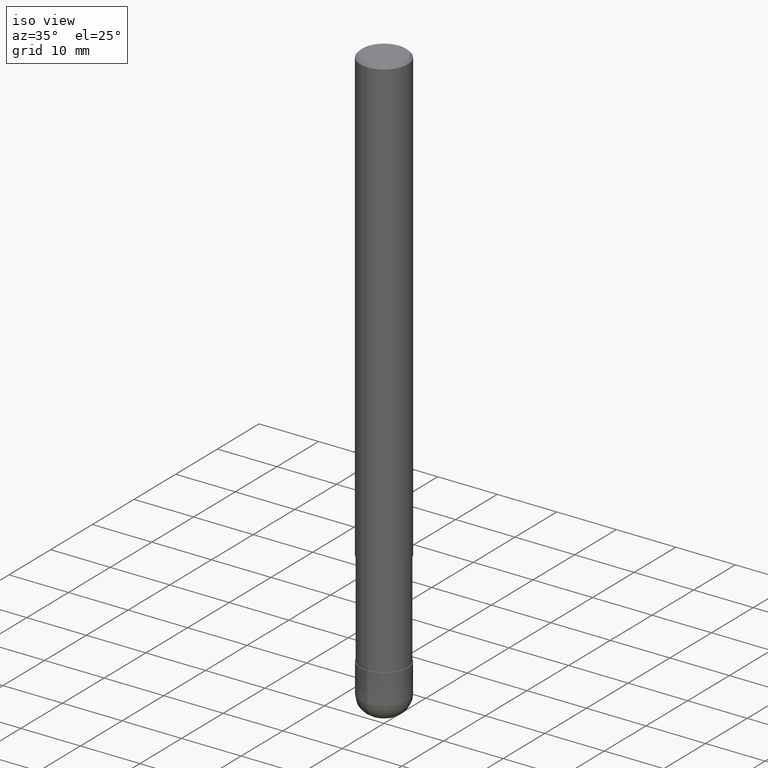
[diagram: clean part render]
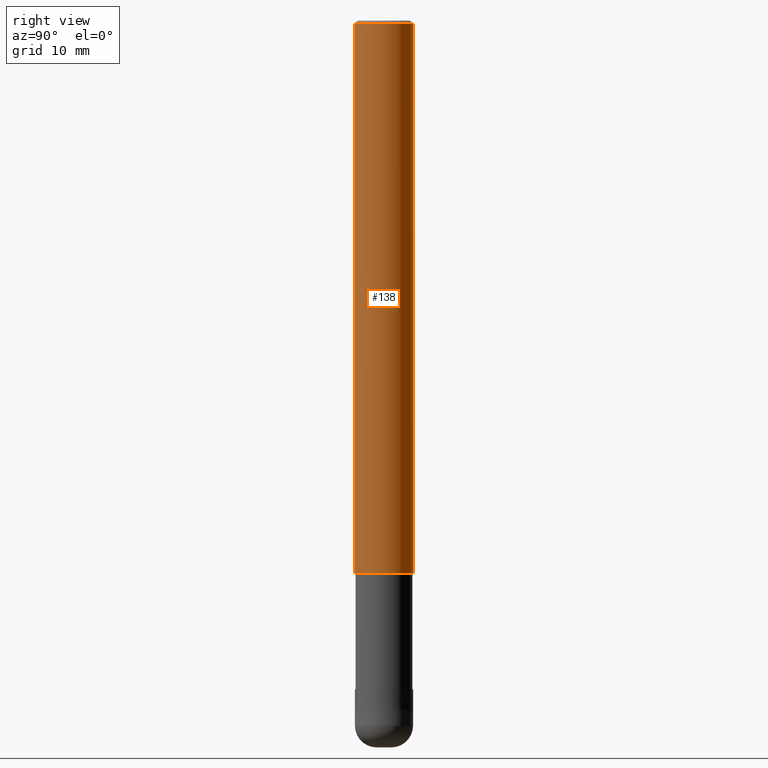
[diagram: tour spotlight — one face highlighted and labeled with its STEP entity id]
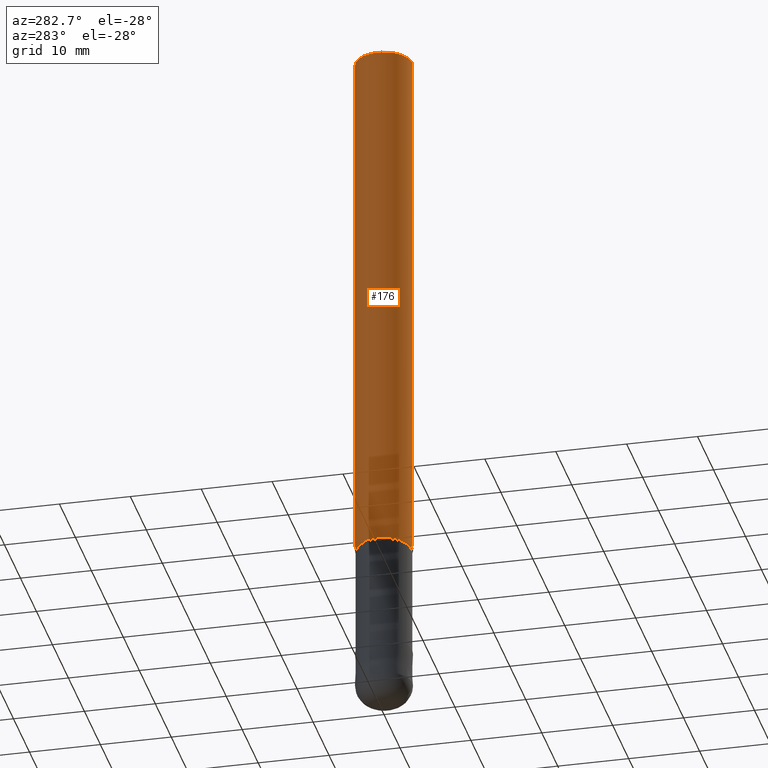
[diagram: tour spotlight — one face highlighted and labeled with its STEP entity id]
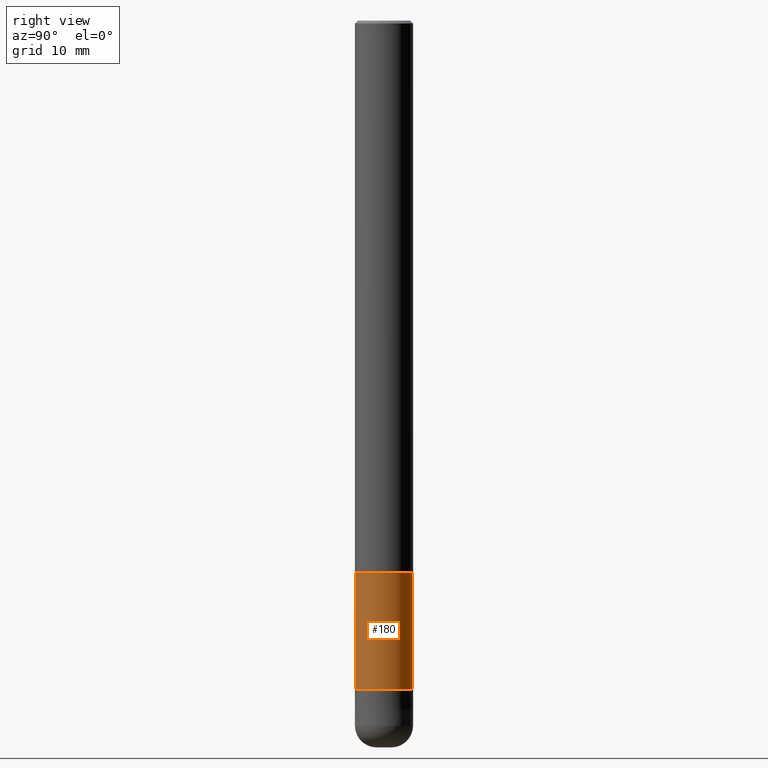
[diagram: tour spotlight — one face highlighted and labeled with its STEP entity id]
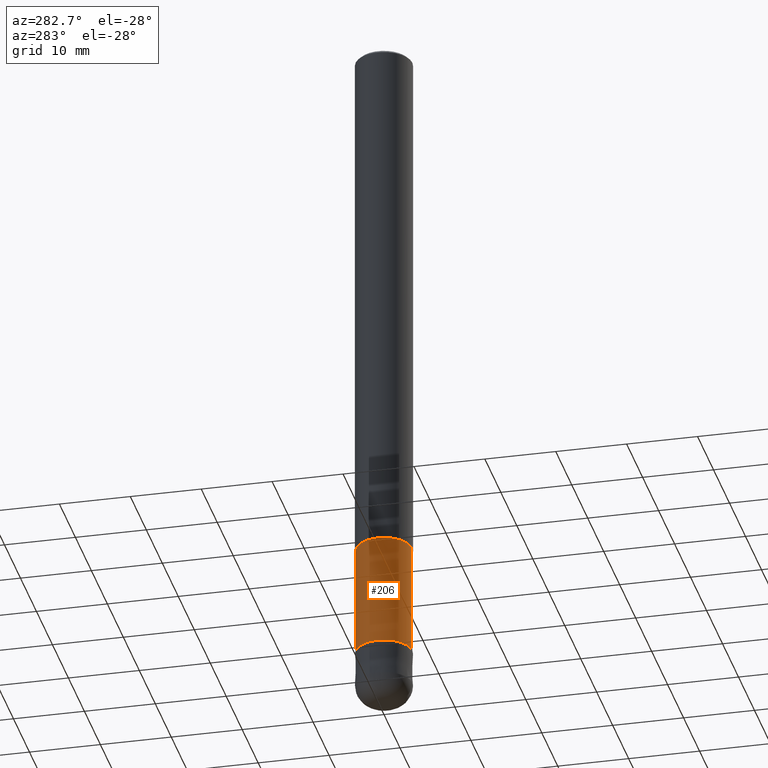
[diagram: tour spotlight — one face highlighted and labeled with its STEP entity id]
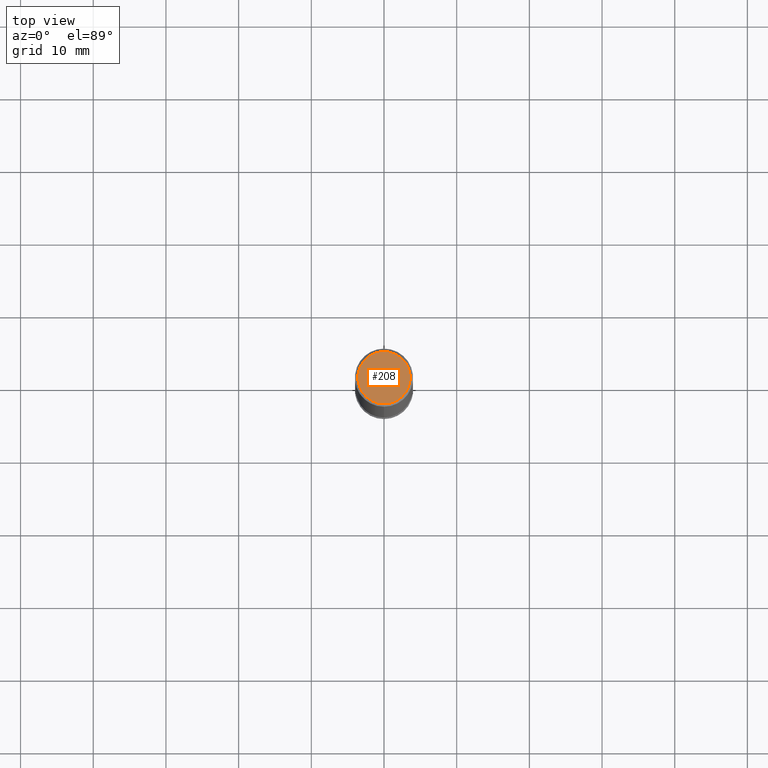
[diagram: tour spotlight — one face highlighted and labeled with its STEP entity id]
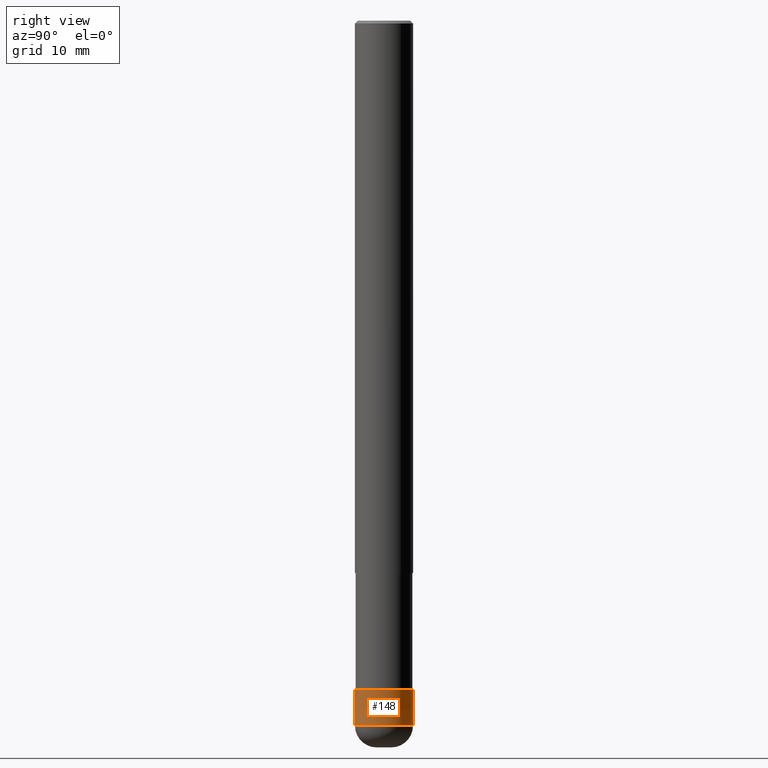
[diagram: tour spotlight — one face highlighted and labeled with its STEP entity id]
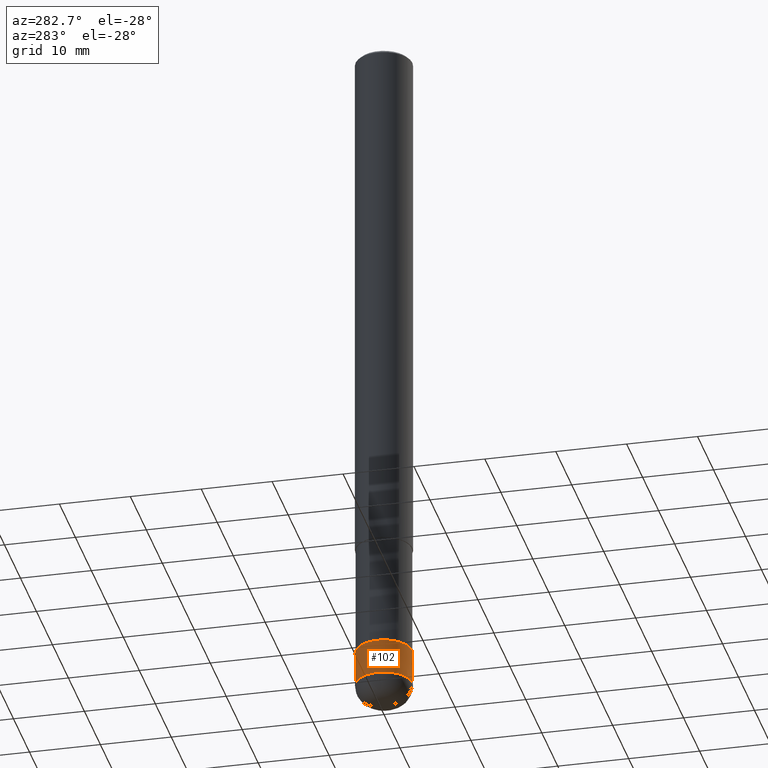
[diagram: tour spotlight — one face highlighted and labeled with its STEP entity id]
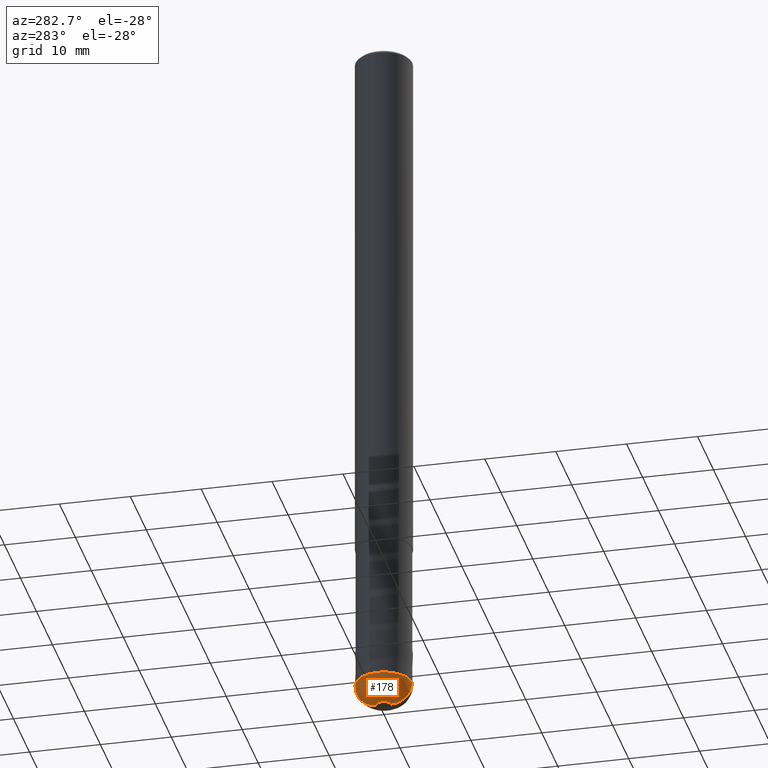
[diagram: tour spotlight — one face highlighted and labeled with its STEP entity id]
A machine part: a face-by-face anatomy tour. The part has 15 B-rep faces; the first image is the clean iso view, then the 8 largest visible faces are spotlighted one at a time (largest first), each with its STEP entity span.

Face 1 — right view, entity #138. In plain terms, the highlighted cylindrical surface (edge-blend (fillet) strip) has radius 4 mm, axis along (-0, -0, 1).
Definition (entity closure, byte-faithful):
#94=EDGE_CURVE('',#172,#198,#231,.T.);
#100=EDGE_CURVE('',#124,#164,#237,.T.);
#110=EDGE_CURVE('',#124,#198,#249,.T.);
#124=VERTEX_POINT('',#263);
#126=EDGE_CURVE('',#164,#172,#265,.T.);
#138=ADVANCED_FACE('',(#277),#278,.T.);
#164=VERTEX_POINT('',#308);
#172=VERTEX_POINT('',#318);
#198=VERTEX_POINT('',#348);
#231=LINE('',#379,#380);
#237=LINE('',#389,#390);
#249=CIRCLE('',#405,4.0);
#263=CARTESIAN_POINT('',(0.0,4.0,-0.400000000000006));
#265=CIRCLE('',#429,4.0);
#277=FACE_OUTER_BOUND('',#441,.T.);
#278=CYLINDRICAL_SURFACE('',#442,4.0);
#308=CARTESIAN_POINT('',(0.0,4.0,-76.0));
#318=CARTESIAN_POINT('',(4.89842541528951E-016,-4.0,-76.0));
#348=CARTESIAN_POINT('',(4.89842541528951E-016,-4.0,-0.400000000000006));
#379=CARTESIAN_POINT('',(4.89842541528951E-016,-4.0,-38.2));
#380=VECTOR('',#541,1.0);
#389=CARTESIAN_POINT('',(-4.89842541528951E-016,4.0,-38.2));
#390=VECTOR('',#543,1.0);
#405=AXIS2_PLACEMENT_3D('',#564,#565,#566);
#429=AXIS2_PLACEMENT_3D('',#578,#579,#580);
#441=EDGE_LOOP('',(#586,#587,#588,#589));
#442=AXIS2_PLACEMENT_3D('',#590,#591,#592);
#541=DIRECTION('',(-0.0,-0.0,1.0));
#543=DIRECTION('',(0.0,0.0,-1.0));
#564=CARTESIAN_POINT('',(0.0,0.0,-0.400000000000006));
#565=DIRECTION('',(0.0,0.0,-1.0));
#566=DIRECTION('',(0.0,1.0,0.0));
#578=CARTESIAN_POINT('',(0.0,0.0,-76.0));
#579=DIRECTION('',(0.0,0.0,-1.0));
#580=DIRECTION('',(0.0,1.0,0.0));
#586=ORIENTED_EDGE('',*,*,#100,.F.);
#587=ORIENTED_EDGE('',*,*,#110,.T.);
#588=ORIENTED_EDGE('',*,*,#94,.F.);
#589=ORIENTED_EDGE('',*,*,#126,.F.);
#590=CARTESIAN_POINT('',(0.0,0.0,-38.2));
#591=DIRECTION('',(-0.0,-0.0,1.0));
#592=DIRECTION('',(0.0,1.0,0.0));

Face 2 — auxiliary view, entity #176. In plain terms, the highlighted cylindrical surface (edge-blend (fillet) strip) has radius 4 mm, axis along (-0, -0, 1).
Definition (entity closure, byte-faithful):
#94=EDGE_CURVE('',#172,#198,#231,.T.);
#100=EDGE_CURVE('',#124,#164,#237,.T.);
#104=EDGE_CURVE('',#198,#124,#242,.T.);
#122=EDGE_CURVE('',#172,#164,#261,.T.);
#124=VERTEX_POINT('',#263);
#164=VERTEX_POINT('',#308);
#172=VERTEX_POINT('',#318);
#176=ADVANCED_FACE('',(#322),#323,.T.);
#198=VERTEX_POINT('',#348);
#231=LINE('',#379,#380);
#237=LINE('',#389,#390);
#242=CIRCLE('',#396,4.0);
#261=CIRCLE('',#424,4.0);
#263=CARTESIAN_POINT('',(0.0,4.0,-0.400000000000006));
#308=CARTESIAN_POINT('',(0.0,4.0,-76.0));
#318=CARTESIAN_POINT('',(4.89842541528951E-016,-4.0,-76.0));
#322=FACE_OUTER_BOUND('',#494,.T.);
#323=CYLINDRICAL_SURFACE('',#495,4.0);
#348=CARTESIAN_POINT('',(4.89842541528951E-016,-4.0,-0.400000000000006));
#379=CARTESIAN_POINT('',(4.89842541528951E-016,-4.0,-38.2));
#380=VECTOR('',#541,1.0);
#389=CARTESIAN_POINT('',(-4.89842541528951E-016,4.0,-38.2));
#390=VECTOR('',#543,1.0);
#396=AXIS2_PLACEMENT_3D('',#552,#553,#554);
#424=AXIS2_PLACEMENT_3D('',#575,#576,#577);
#494=EDGE_LOOP('',(#651,#652,#653,#654));
#495=AXIS2_PLACEMENT_3D('',#655,#656,#657);
#541=DIRECTION('',(-0.0,-0.0,1.0));
#543=DIRECTION('',(0.0,0.0,-1.0));
#552=CARTESIAN_POINT('',(0.0,0.0,-0.400000000000006));
#553=DIRECTION('',(0.0,0.0,-1.0));
#554=DIRECTION('',(0.0,1.0,0.0));
#575=CARTESIAN_POINT('',(0.0,0.0,-76.0));
#576=DIRECTION('',(0.0,0.0,-1.0));
#577=DIRECTION('',(0.0,1.0,0.0));
#651=ORIENTED_EDGE('',*,*,#100,.T.);
#652=ORIENTED_EDGE('',*,*,#122,.F.);
#653=ORIENTED_EDGE('',*,*,#94,.T.);
#654=ORIENTED_EDGE('',*,*,#104,.T.);
#655=CARTESIAN_POINT('',(0.0,0.0,-38.2));
#656=DIRECTION('',(-0.0,-0.0,1.0));
#657=DIRECTION('',(0.0,1.0,0.0));

Face 3 — right view, entity #180. In plain terms, the highlighted cylindrical surface (edge-blend (fillet) strip) has radius 3.9099 mm, axis along (-0, -0, 1).
Definition (entity closure, byte-faithful):
#92=EDGE_CURVE('',#150,#136,#229,.T.);
#114=EDGE_CURVE('',#194,#158,#253,.T.);
#136=VERTEX_POINT('',#275);
#144=EDGE_CURVE('',#150,#158,#284,.T.);
#150=VERTEX_POINT('',#291);
#158=VERTEX_POINT('',#300);
#180=ADVANCED_FACE('',(#328),#329,.T.);
#186=EDGE_CURVE('',#136,#194,#335,.T.);
#194=VERTEX_POINT('',#344);
#229=LINE('',#375,#376);
#253=LINE('',#412,#413);
#275=CARTESIAN_POINT('',(0.0,3.90995,-92.0));
#284=CIRCLE('',#452,3.90995);
#291=CARTESIAN_POINT('',(0.0,3.90995,-76.0));
#300=CARTESIAN_POINT('',(4.7881496131278E-016,-3.90995,-76.0));
#328=FACE_OUTER_BOUND('',#500,.T.);
#329=CYLINDRICAL_SURFACE('',#501,3.90995);
#335=CIRCLE('',#511,3.90995);
#344=CARTESIAN_POINT('',(4.7881496131278E-016,-3.90995,-92.0));
#375=CARTESIAN_POINT('',(-4.7881496131278E-016,3.90995,-84.0));
#376=VECTOR('',#540,1.0);
#412=CARTESIAN_POINT('',(4.7881496131278E-016,-3.90995,-84.0));
#413=VECTOR('',#568,1.0);
#452=AXIS2_PLACEMENT_3D('',#597,#598,#599);
#500=EDGE_LOOP('',(#667,#668,#669,#670));
#501=AXIS2_PLACEMENT_3D('',#671,#672,#673);
#511=AXIS2_PLACEMENT_3D('',#678,#679,#680);
#540=DIRECTION('',(0.0,0.0,-1.0));
#568=DIRECTION('',(-0.0,-0.0,1.0));
#597=CARTESIAN_POINT('',(0.0,0.0,-76.0));
#598=DIRECTION('',(0.0,0.0,-1.0));
#599=DIRECTION('',(0.0,1.0,0.0));
#667=ORIENTED_EDGE('',*,*,#92,.F.);
#668=ORIENTED_EDGE('',*,*,#144,.T.);
#669=ORIENTED_EDGE('',*,*,#114,.F.);
#670=ORIENTED_EDGE('',*,*,#186,.F.);
#671=CARTESIAN_POINT('',(0.0,0.0,-84.0));
#672=DIRECTION('',(-0.0,-0.0,1.0));
#673=DIRECTION('',(0.0,1.0,0.0));
#678=CARTESIAN_POINT('',(0.0,0.0,-92.0));
#679=DIRECTION('',(0.0,0.0,-1.0));
#680=DIRECTION('',(0.0,1.0,0.0));

Face 4 — auxiliary view, entity #206. In plain terms, the highlighted cylindrical surface (edge-blend (fillet) strip) has radius 3.9099 mm, axis along (-0, -0, 1).
Definition (entity closure, byte-faithful):
#92=EDGE_CURVE('',#150,#136,#229,.T.);
#114=EDGE_CURVE('',#194,#158,#253,.T.);
#116=EDGE_CURVE('',#194,#136,#255,.T.);
#136=VERTEX_POINT('',#275);
#150=VERTEX_POINT('',#291);
#158=VERTEX_POINT('',#300);
#188=EDGE_CURVE('',#158,#150,#337,.T.);
#194=VERTEX_POINT('',#344);
#206=ADVANCED_FACE('',(#357),#358,.T.);
#229=LINE('',#375,#376);
#253=LINE('',#412,#413);
#255=CIRCLE('',#416,3.90995);
#275=CARTESIAN_POINT('',(0.0,3.90995,-92.0));
#291=CARTESIAN_POINT('',(0.0,3.90995,-76.0));
#300=CARTESIAN_POINT('',(4.7881496131278E-016,-3.90995,-76.0));
#337=CIRCLE('',#514,3.90995);
#344=CARTESIAN_POINT('',(4.7881496131278E-016,-3.90995,-92.0));
#357=FACE_OUTER_BOUND('',#534,.T.);
#358=CYLINDRICAL_SURFACE('',#535,3.90995);
#375=CARTESIAN_POINT('',(-4.7881496131278E-016,3.90995,-84.0));
#376=VECTOR('',#540,1.0);
#412=CARTESIAN_POINT('',(4.7881496131278E-016,-3.90995,-84.0));
#413=VECTOR('',#568,1.0);
#416=AXIS2_PLACEMENT_3D('',#569,#570,#571);
#514=AXIS2_PLACEMENT_3D('',#681,#682,#683);
#534=EDGE_LOOP('',(#703,#704,#705,#706));
#535=AXIS2_PLACEMENT_3D('',#707,#708,#709);
#540=DIRECTION('',(0.0,0.0,-1.0));
#568=DIRECTION('',(-0.0,-0.0,1.0));
#569=CARTESIAN_POINT('',(0.0,0.0,-92.0));
#570=DIRECTION('',(0.0,0.0,-1.0));
#571=DIRECTION('',(0.0,1.0,0.0));
#681=CARTESIAN_POINT('',(0.0,0.0,-76.0));
#682=DIRECTION('',(0.0,0.0,-1.0));
#683=DIRECTION('',(0.0,1.0,0.0));
#703=ORIENTED_EDGE('',*,*,#92,.T.);
#704=ORIENTED_EDGE('',*,*,#116,.F.);
#705=ORIENTED_EDGE('',*,*,#114,.T.);
#706=ORIENTED_EDGE('',*,*,#188,.T.);
#707=CARTESIAN_POINT('',(0.0,0.0,-84.0));
#708=DIRECTION('',(-0.0,-0.0,1.0));
#709=DIRECTION('',(0.0,1.0,0.0));

Face 5 — top view, entity #208. In plain terms, the highlighted planar face has unit normal (-0, 0, 1).
Definition (entity closure, byte-faithful):
#120=EDGE_CURVE('',#146,#156,#259,.T.);
#146=VERTEX_POINT('',#286);
#156=VERTEX_POINT('',#298);
#162=EDGE_CURVE('',#156,#146,#306,.T.);
#208=ADVANCED_FACE('',(#360),#361,.T.);
#259=CIRCLE('',#421,3.6);
#286=CARTESIAN_POINT('',(4.40858287376056E-016,-3.6,0.0));
#298=CARTESIAN_POINT('',(0.0,3.6,0.0));
#306=CIRCLE('',#476,3.6);
#360=FACE_OUTER_BOUND('',#537,.T.);
#361=PLANE('',#538);
#421=AXIS2_PLACEMENT_3D('',#572,#573,#574);
#476=AXIS2_PLACEMENT_3D('',#627,#628,#629);
#537=EDGE_LOOP('',(#711,#712));
#538=AXIS2_PLACEMENT_3D('',#713,#714,#715);
#572=CARTESIAN_POINT('',(0.0,0.0,0.0));
#573=DIRECTION('',(0.0,0.0,-1.0));
#574=DIRECTION('',(0.0,1.0,0.0));
#627=CARTESIAN_POINT('',(0.0,0.0,0.0));
#628=DIRECTION('',(0.0,0.0,-1.0));
#629=DIRECTION('',(0.0,1.0,0.0));
#711=ORIENTED_EDGE('',*,*,#162,.F.);
#712=ORIENTED_EDGE('',*,*,#120,.F.);
#713=CARTESIAN_POINT('',(0.0,1.8,0.0));
#714=DIRECTION('',(-0.0,0.0,1.0));
#715=DIRECTION('',(0.0,-1.0,0.0));

Face 6 — right view, entity #148. In plain terms, the highlighted conical surface has half-angle 0.001 deg.
Definition (entity closure, byte-faithful):
#98=VERTEX_POINT('',#235);
#108=EDGE_CURVE('',#196,#118,#247,.T.);
#118=VERTEX_POINT('',#257);
#134=VERTEX_POINT('',#273);
#140=EDGE_CURVE('',#134,#98,#280,.T.);
#142=EDGE_CURVE('',#196,#134,#282,.T.);
#148=ADVANCED_FACE('',(#288),#289,.T.);
#182=EDGE_CURVE('',#98,#118,#331,.T.);
#196=VERTEX_POINT('',#346);
#235=CARTESIAN_POINT('',(4.89842541528951E-016,-4.0,-97.0));
#247=CIRCLE('',#402,3.9999);
#257=CARTESIAN_POINT('',(4.89830295465413E-016,-3.9999,-92.0));
#273=CARTESIAN_POINT('',(0.0,4.0,-97.0));
#280=CIRCLE('',#445,4.0);
#282=LINE('',#448,#449);
#288=FACE_OUTER_BOUND('',#456,.T.);
#289=CONICAL_SURFACE('',#457,3.99995,1.99999999973755E-005);
#331=LINE('',#504,#505);
#346=CARTESIAN_POINT('',(0.0,3.9999,-92.0));
#402=AXIS2_PLACEMENT_3D('',#561,#562,#563);
#445=AXIS2_PLACEMENT_3D('',#593,#594,#595);
#448=CARTESIAN_POINT('',(-4.89836418497182E-016,3.99995,-94.5));
#449=VECTOR('',#596,1.0);
#456=EDGE_LOOP('',(#601,#602,#603,#604));
#457=AXIS2_PLACEMENT_3D('',#605,#606,#607);
#504=CARTESIAN_POINT('',(4.89836418497182E-016,-3.99995,-94.5));
#505=VECTOR('',#674,1.0);
#561=CARTESIAN_POINT('',(0.0,0.0,-92.0));
#562=DIRECTION('',(0.0,0.0,-1.0));
#563=DIRECTION('',(0.0,1.0,0.0));
#593=CARTESIAN_POINT('',(0.0,0.0,-97.0));
#594=DIRECTION('',(0.0,0.0,-1.0));
#595=DIRECTION('',(0.0,1.0,0.0));
#596=DIRECTION('',(-2.44921270716008E-021,1.99999999960422E-005,-0.9999999998));
#601=ORIENTED_EDGE('',*,*,#142,.F.);
#602=ORIENTED_EDGE('',*,*,#108,.T.);
#603=ORIENTED_EDGE('',*,*,#182,.F.);
#604=ORIENTED_EDGE('',*,*,#140,.F.);
#605=CARTESIAN_POINT('',(0.0,0.0,-94.5));
#606=DIRECTION('',(0.0,-0.0,-1.0));
#607=DIRECTION('',(0.0,1.0,0.0));
#674=DIRECTION('',(-2.44921270716008E-021,1.99999999960422E-005,0.9999999998));

Face 7 — auxiliary view, entity #102. In plain terms, the highlighted conical surface has half-angle 0.001 deg.
Definition (entity closure, byte-faithful):
#98=VERTEX_POINT('',#235);
#102=ADVANCED_FACE('',(#239),#240,.T.);
#118=VERTEX_POINT('',#257);
#134=VERTEX_POINT('',#273);
#142=EDGE_CURVE('',#196,#134,#282,.T.);
#166=EDGE_CURVE('',#98,#134,#310,.T.);
#182=EDGE_CURVE('',#98,#118,#331,.T.);
#196=VERTEX_POINT('',#346);
#202=EDGE_CURVE('',#118,#196,#353,.T.);
#235=CARTESIAN_POINT('',(4.89842541528951E-016,-4.0,-97.0));
#239=FACE_OUTER_BOUND('',#392,.T.);
#240=CONICAL_SURFACE('',#393,3.99995,1.99999999973755E-005);
#257=CARTESIAN_POINT('',(4.89830295465413E-016,-3.9999,-92.0));
#273=CARTESIAN_POINT('',(0.0,4.0,-97.0));
#282=LINE('',#448,#449);
#310=CIRCLE('',#481,4.0);
#331=LINE('',#504,#505);
#346=CARTESIAN_POINT('',(0.0,3.9999,-92.0));
#353=CIRCLE('',#530,3.9999);
#392=EDGE_LOOP('',(#545,#546,#547,#548));
#393=AXIS2_PLACEMENT_3D('',#549,#550,#551);
#448=CARTESIAN_POINT('',(-4.89836418497182E-016,3.99995,-94.5));
#449=VECTOR('',#596,1.0);
#481=AXIS2_PLACEMENT_3D('',#630,#631,#632);
#504=CARTESIAN_POINT('',(4.89836418497182E-016,-3.99995,-94.5));
#505=VECTOR('',#674,1.0);
#530=AXIS2_PLACEMENT_3D('',#699,#700,#701);
#545=ORIENTED_EDGE('',*,*,#142,.T.);
#546=ORIENTED_EDGE('',*,*,#166,.F.);
#547=ORIENTED_EDGE('',*,*,#182,.T.);
#548=ORIENTED_EDGE('',*,*,#202,.T.);
#549=CARTESIAN_POINT('',(0.0,0.0,-94.5));
#550=DIRECTION('',(0.0,-0.0,-1.0));
#551=DIRECTION('',(0.0,1.0,0.0));
#596=DIRECTION('',(-2.44921270716008E-021,1.99999999960422E-005,-0.9999999998));
#630=CARTESIAN_POINT('',(0.0,0.0,-97.0));
#631=DIRECTION('',(0.0,0.0,-1.0));
#632=DIRECTION('',(0.0,1.0,0.0));
#674=DIRECTION('',(-2.44921270716008E-021,1.99999999960422E-005,0.9999999998));
#699=CARTESIAN_POINT('',(0.0,0.0,-92.0));
#700=DIRECTION('',(0.0,0.0,-1.0));
#701=DIRECTION('',(0.0,1.0,0.0));

Face 8 — auxiliary view, entity #178. In plain terms, the highlighted toroidal blend (fillet) surface has major radius 1 mm and minor (blend) radius 3 mm.
Definition (entity closure, byte-faithful):
#98=VERTEX_POINT('',#235);
#128=VERTEX_POINT('',#267);
#132=EDGE_CURVE('',#204,#134,#271,.T.);
#134=VERTEX_POINT('',#273);
#154=EDGE_CURVE('',#98,#128,#296,.T.);
#166=EDGE_CURVE('',#98,#134,#310,.T.);
#174=EDGE_CURVE('',#128,#204,#320,.T.);
#178=ADVANCED_FACE('',(#325),#326,.T.);
#204=VERTEX_POINT('',#355);
#235=CARTESIAN_POINT('',(4.89842541528951E-016,-4.0,-97.0));
#267=CARTESIAN_POINT('',(1.22460635382238E-016,-1.0,-100.0));
#271=CIRCLE('',#435,3.0);
#273=CARTESIAN_POINT('',(0.0,4.0,-97.0));
#296=CIRCLE('',#465,3.0);
#310=CIRCLE('',#481,4.0);
#320=CIRCLE('',#492,1.0);
#325=FACE_OUTER_BOUND('',#497,.T.);
#326=TOROIDAL_SURFACE('',#498,0.999999999999996,3.0);
#355=CARTESIAN_POINT('',(0.0,1.0,-100.0));
#435=AXIS2_PLACEMENT_3D('',#582,#583,#584);
#465=AXIS2_PLACEMENT_3D('',#616,#617,#618);
#481=AXIS2_PLACEMENT_3D('',#630,#631,#632);
#492=AXIS2_PLACEMENT_3D('',#647,#648,#649);
#497=EDGE_LOOP('',(#659,#660,#661,#662));
#498=AXIS2_PLACEMENT_3D('',#663,#664,#665);
#582=CARTESIAN_POINT('',(-1.22460635382237E-016,0.999999999999996,-97.0));
#583=DIRECTION('',(1.0,1.22460635382238E-016,0.0));
#584=DIRECTION('',(-1.22460635382238E-016,1.0,0.0));
#616=CARTESIAN_POINT('',(1.22460635382237E-016,-0.999999999999996,-97.0));
#617=DIRECTION('',(1.0,1.22460635382238E-016,0.0));
#618=DIRECTION('',(1.22460635382238E-016,-1.0,-0.0));
#630=CARTESIAN_POINT('',(0.0,0.0,-97.0));
#631=DIRECTION('',(0.0,0.0,-1.0));
#632=DIRECTION('',(0.0,1.0,0.0));
#647=CARTESIAN_POINT('',(0.0,0.0,-100.0));
#648=DIRECTION('',(0.0,0.0,-1.0));
#649=DIRECTION('',(0.0,1.0,0.0));
#659=ORIENTED_EDGE('',*,*,#154,.F.);
#660=ORIENTED_EDGE('',*,*,#166,.T.);
#661=ORIENTED_EDGE('',*,*,#132,.F.);
#662=ORIENTED_EDGE('',*,*,#174,.F.);
#663=CARTESIAN_POINT('',(0.0,0.0,-97.0));
#664=DIRECTION('',(0.0,0.0,-1.0));
#665=DIRECTION('',(0.0,-1.0,0.0));